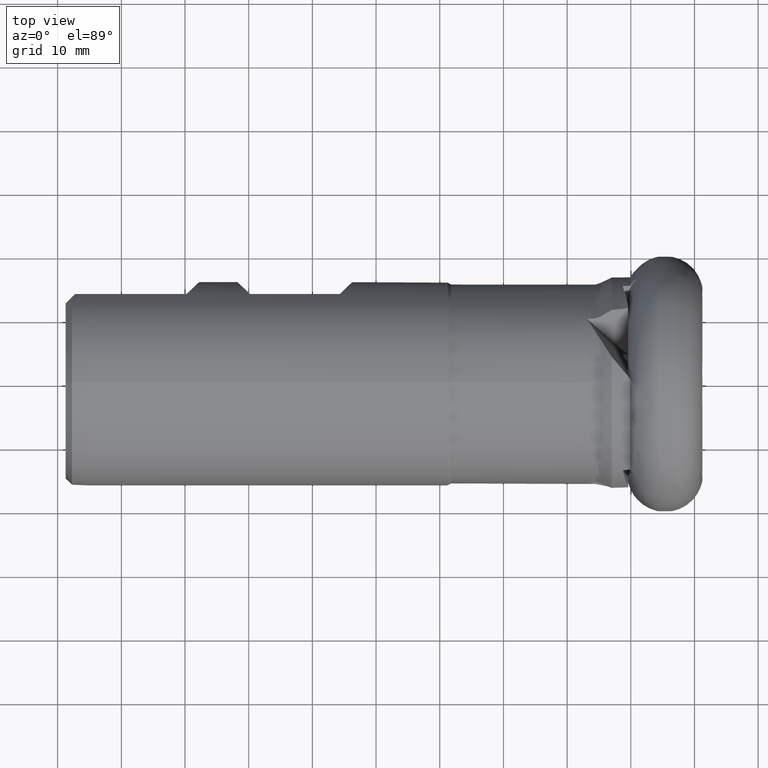
[diagram: clean part render]
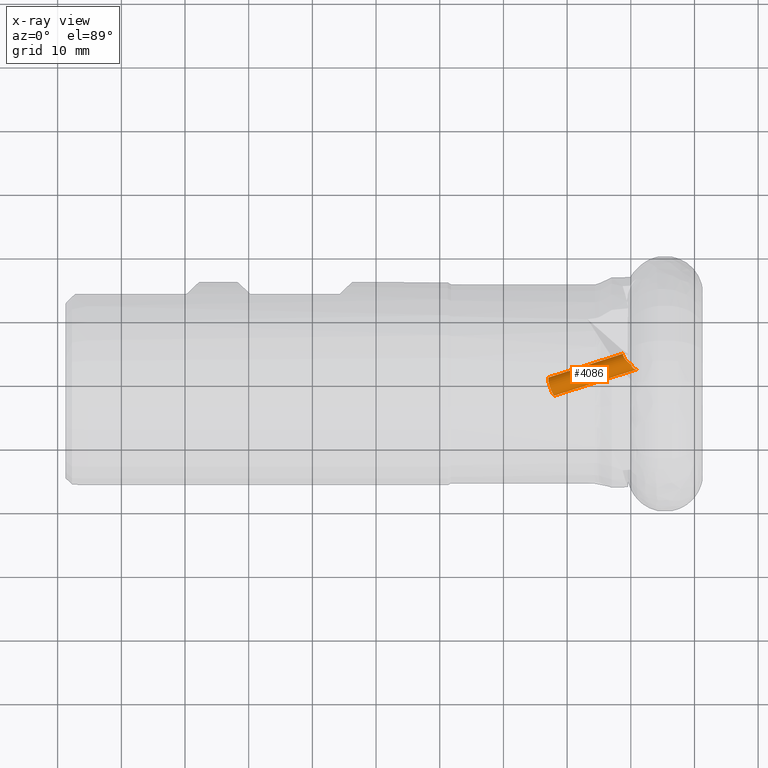
[diagram: x-ray — body ghosted, one internal face saturated and labeled with its STEP entity id]
A machine part, top view, then the same camera in x-ray: the body is ghosted and one INTERNAL B-rep face — a face not visible from any outside direction — is saturated and labeled: STEP entity #4086.
In plain terms, the highlighted cylindrical surface (edge-blend (fillet) strip) has radius 1.5 mm, axis along (0.9397, 0.2962, 0.171).
Its self-contained STEP definition (entity closure, byte-faithful):
#3 = CARTESIAN_POINT ( 'NONE',  ( -11.21268239772161300, 4.321156452893641000, 10.36050407660936700 ) ) ;
#74 = ORIENTED_EDGE ( 'NONE', *, *, #6425, .T. ) ;
#78 =( BOUNDED_CURVE ( )  B_SPLINE_CURVE ( 3, ( #5023, #3036, #3, #3967 ),
 .UNSPECIFIED., .F., .F. ) 
 B_SPLINE_CURVE_WITH_KNOTS ( ( 4, 4 ),
 ( 3.336818873749293900, 3.551018758880640600 ),
 .UNSPECIFIED. ) 
 CURVE ( )  GEOMETRIC_REPRESENTATION_ITEM ( )  RATIONAL_B_SPLINE_CURVE ( ( 1.000000000000000000, 0.9961801874265956400, 0.9961801874265956400, 1.000000000000000000 ) ) 
 REPRESENTATION_ITEM ( '' )  );
#170 = CARTESIAN_POINT ( 'NONE',  ( -9.361501599535754900, 2.116475218714119100, 10.27517171568130600 ) ) ;
#173 = ORIENTED_EDGE ( 'NONE', *, *, #4732, .T. ) ;
#222 = ORIENTED_EDGE ( 'NONE', *, *, #2906, .T. ) ;
#236 = ORIENTED_EDGE ( 'NONE', *, *, #1469, .T. ) ;
#289 = CYLINDRICAL_SURFACE ( 'NONE', #914, 1.500000000000000200 ) ;
#303 = CARTESIAN_POINT ( 'NONE',  ( -11.15098730179242300, 4.160976870383501100, 10.59003309559142500 ) ) ;
#422 = CARTESIAN_POINT ( 'NONE',  ( -11.23424538701962300, 4.420419348281042100, 10.17036178828940200 ) ) ;
#502 = EDGE_CURVE ( 'NONE', #1593, #2717, #4469, .T. ) ;
#641 = CARTESIAN_POINT ( 'NONE',  ( -9.938033202697312200, 2.848999790283987200, 11.08142318768708100 ) ) ;
#710 = CARTESIAN_POINT ( 'NONE',  ( -9.706517931435939800, 2.360929684499228900, 10.75394449169594000 ) ) ;
#820 = CARTESIAN_POINT ( 'NONE',  ( -11.09118604743561700, 4.044540463928854900, 10.71354564792637600 ) ) ;
#914 = AXIS2_PLACEMENT_3D ( 'NONE', #3256, #3772, #1776 ) ;
#923 = CARTESIAN_POINT ( 'NONE',  ( -8.963595519868263800, 2.139120107154056900, 9.781469016275758900 ) ) ;
#1118 = CARTESIAN_POINT ( 'NONE',  ( -8.963595519868263800, 2.139120107154056900, 9.781469016275758900 ) ) ;
#1206 = CARTESIAN_POINT ( 'NONE',  ( -9.894113412521534200, 2.707930122370692000, 11.02469285568558800 ) ) ;
#1290 = VERTEX_POINT ( 'NONE', #3115 ) ;
#1321 = CARTESIAN_POINT ( 'NONE',  ( -10.83919371816804600, 3.664597255783881300, 10.98832939910910900 ) ) ;
#1331 = CIRCLE ( 'NONE', #1968, 1.499999999999999800 ) ;
#1410 = B_SPLINE_CURVE_WITH_KNOTS ( 'NONE', 3,
 ( #6256, #303, #820, #4765, #1321, #5294, #4927, #4444, #2999, #3948 ),
 .UNSPECIFIED., .F., .F.,
 ( 4, 2, 2, 2, 4 ),
 ( 0.0009772608556434998200, 0.001506163918290924200, 0.002035066980938349100, 0.002563970043585773500, 0.003092873106233197900 ),
 .UNSPECIFIED. ) ;
#1469 = EDGE_CURVE ( 'NONE', #5069, #2717, #3570, .T. ) ;
#1593 = VERTEX_POINT ( 'NONE', #3869 ) ;
#1628 = CARTESIAN_POINT ( 'NONE',  ( -22.00963810053911700, -1.973089956416636000, 7.407283429092764500 ) ) ;
#1655 = DIRECTION ( 'NONE',  ( 0.9396926207859082100, 0.2961981327260260200, 0.1710100716628319700 ) ) ;
#1658 = CARTESIAN_POINT ( 'NONE',  ( -9.456650564755706900, 2.151673127486318100, 10.40248370110681700 ) ) ;
#1697 = CARTESIAN_POINT ( 'NONE',  ( -11.16213260580922800, 4.591629801689934200, 9.545496676448891500 ) ) ;
#1753 = VERTEX_POINT ( 'NONE', #422 ) ;
#1776 = DIRECTION ( 'NONE',  ( -0.3006265784832248300, 0.9537419254229465600, 0.0000000000000000000 ) ) ;
#1936 = EDGE_CURVE ( 'NONE', #2136, #5069, #1410, .T. ) ;
#1944 = DIRECTION ( 'NONE',  ( 0.9396926207859082100, 0.2961981327260260200, 0.1710100716628319700 ) ) ;
#1954 = EDGE_LOOP ( 'NONE', ( #3426, #2061, #74, #173, #222, #3431, #236 ) ) ;
#1968 = AXIS2_PLACEMENT_3D ( 'NONE', #4429, #5886, #3978 ) ;
#2061 = ORIENTED_EDGE ( 'NONE', *, *, #3548, .F. ) ;
#2110 = CARTESIAN_POINT ( 'NONE',  ( -9.063580945043922200, 2.107603954339465300, 9.900077995401440800 ) ) ;
#2136 = VERTEX_POINT ( 'NONE', #3219 ) ;
#2303 = VERTEX_POINT ( 'NONE', #1697 ) ;
#2670 = VECTOR ( 'NONE', #1655, 1000.000000000000000 ) ;
#2717 = VERTEX_POINT ( 'NONE', #923 ) ;
#2906 = EDGE_CURVE ( 'NONE', #1753, #2136, #78, .T. ) ;
#2999 = CARTESIAN_POINT ( 'NONE',  ( -10.08568025876975200, 2.941493224059236900, 11.11264175390812500 ) ) ;
#3036 = CARTESIAN_POINT ( 'NONE',  ( -11.22774576797140800, 4.374747177189864700, 10.26768221931388900 ) ) ;
#3111 = CARTESIAN_POINT ( 'NONE',  ( -9.938033202697312200, 2.848999790283987200, 11.08142318768708100 ) ) ;
#3115 = CARTESIAN_POINT ( 'NONE',  ( -22.91151783598879300, 0.8881358198522039100, 7.407283429092764500 ) ) ;
#3138 = CARTESIAN_POINT ( 'NONE',  ( -9.838417265248976300, 2.576826586987433800, 10.94461671580514700 ) ) ;
#3219 = CARTESIAN_POINT ( 'NONE',  ( -11.18922789402347600, 4.260261294959825300, 10.44776367388307900 ) ) ;
#3256 = CARTESIAN_POINT ( 'NONE',  ( -22.46057796826395500, -0.5424770682822162000, 7.407283429092764500 ) ) ;
#3284 = LINE ( 'NONE', #5438, #4734 ) ;
#3300 = CARTESIAN_POINT ( 'NONE',  ( -11.21461563258062300, 4.562578934825860500, 9.756790157153842500 ) ) ;
#3426 = ORIENTED_EDGE ( 'NONE', *, *, #502, .F. ) ;
#3431 = ORIENTED_EDGE ( 'NONE', *, *, #1936, .T. ) ;
#3548 = EDGE_CURVE ( 'NONE', #1290, #1593, #1331, .T. ) ;
#3570 = B_SPLINE_CURVE_WITH_KNOTS ( 'NONE', 3,
 ( #641, #1206, #3138, #710, #4205, #1658, #170, #3701, #2110, #1118 ),
 .UNSPECIFIED., .F., .F.,
 ( 4, 2, 2, 2, 4 ),
 ( 0.002958386314465906400, 0.003433522345008865300, 0.003908658375551823800, 0.004383794406094782700, 0.004858930436637741600 ),
 .UNSPECIFIED. ) ;
#3701 = CARTESIAN_POINT ( 'NONE',  ( -9.165827860986864200, 2.094726896368813900, 10.02513739262521100 ) ) ;
#3724 = CARTESIAN_POINT ( 'NONE',  ( -11.23843536361138900, 4.505325066097758400, 9.966766041679260700 ) ) ;
#3772 = DIRECTION ( 'NONE',  ( 0.9396926207859082100, 0.2961981327260260200, 0.1710100716628319700 ) ) ;
#3869 = CARTESIAN_POINT ( 'NONE',  ( -22.00963810053911700, -1.973089956416636000, 7.407283429092764500 ) ) ;
#3948 = CARTESIAN_POINT ( 'NONE',  ( -9.938033202697312200, 2.848999790283987200, 11.08142318768708100 ) ) ;
#3967 = CARTESIAN_POINT ( 'NONE',  ( -11.18922789402347600, 4.260261294959825300, 10.44776367388307900 ) ) ;
#3978 = DIRECTION ( 'NONE',  ( -0.3420201433256692100, 0.8137976813493779100, 0.4698463103929464400 ) ) ;
#4086 = ADVANCED_FACE ( 'NONE', ( #5278 ), #289, .F. ) ;
#4205 = CARTESIAN_POINT ( 'NONE',  ( -9.628217027797411700, 2.273043406433748400, 10.64063521512223800 ) ) ;
#4210 = CARTESIAN_POINT ( 'NONE',  ( -11.19350279216604300, 4.581741684643335000, 9.651290002819509400 ) ) ;
#4429 = CARTESIAN_POINT ( 'NONE',  ( -22.46057796826395500, -0.5424770682822162000, 7.407283429092764500 ) ) ;
#4444 = CARTESIAN_POINT ( 'NONE',  ( -10.22869359480482700, 3.048028247758728200, 11.12793287500142700 ) ) ;
#4469 = LINE ( 'NONE', #1628, #2670 ) ;
#4703 = CARTESIAN_POINT ( 'NONE',  ( -11.24083952766368300, 4.466755713144946700, 10.07162606163299800 ) ) ;
#4732 = EDGE_CURVE ( 'NONE', #2303, #1753, #6362, .T. ) ;
#4734 = VECTOR ( 'NONE', #1944, 1000.000000000000000 ) ;
#4765 = CARTESIAN_POINT ( 'NONE',  ( -10.93561855608997600, 3.796659188056092500, 10.91247558126215400 ) ) ;
#4927 = CARTESIAN_POINT ( 'NONE',  ( -10.49494082235335300, 3.280162949685256900, 11.11684341822112800 ) ) ;
#5023 = CARTESIAN_POINT ( 'NONE',  ( -11.23424538701962300, 4.420419348281042100, 10.17036178828940200 ) ) ;
#5069 = VERTEX_POINT ( 'NONE', #3111 ) ;
#5188 = CARTESIAN_POINT ( 'NONE',  ( -11.23424538701962300, 4.420419348281042100, 10.17036178828940200 ) ) ;
#5278 = FACE_OUTER_BOUND ( 'NONE', #1954, .T. ) ;
#5294 = CARTESIAN_POINT ( 'NONE',  ( -10.61958742009305800, 3.407133909019376600, 11.09011613200968700 ) ) ;
#5438 = CARTESIAN_POINT ( 'NONE',  ( -22.91151783598879300, 0.8881358198522036900, 7.407283429092764500 ) ) ;
#5886 = DIRECTION ( 'NONE',  ( 0.9396926207859083200, 0.2961981327260260800, 0.1710100716628320000 ) ) ;
#6218 = CARTESIAN_POINT ( 'NONE',  ( -11.16213260580922800, 4.591629801689934200, 9.545496676448891500 ) ) ;
#6256 = CARTESIAN_POINT ( 'NONE',  ( -11.18922789402347600, 4.260261294959825300, 10.44776367388307900 ) ) ;
#6362 = B_SPLINE_CURVE_WITH_KNOTS ( 'NONE', 3,
 ( #6218, #4210, #3300, #3724, #4703, #5188 ),
 .UNSPECIFIED., .F., .F.,
 ( 4, 2, 4 ),
 ( 0.0000000000000000000, 0.0003275017619873850900, 0.0006550035239747701800 ),
 .UNSPECIFIED. ) ;
#6425 = EDGE_CURVE ( 'NONE', #1290, #2303, #3284, .T. ) ;